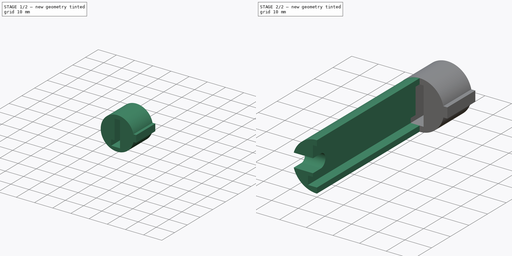
[diagram: build sequence overview — one tinted view per stage of 2, left to right]
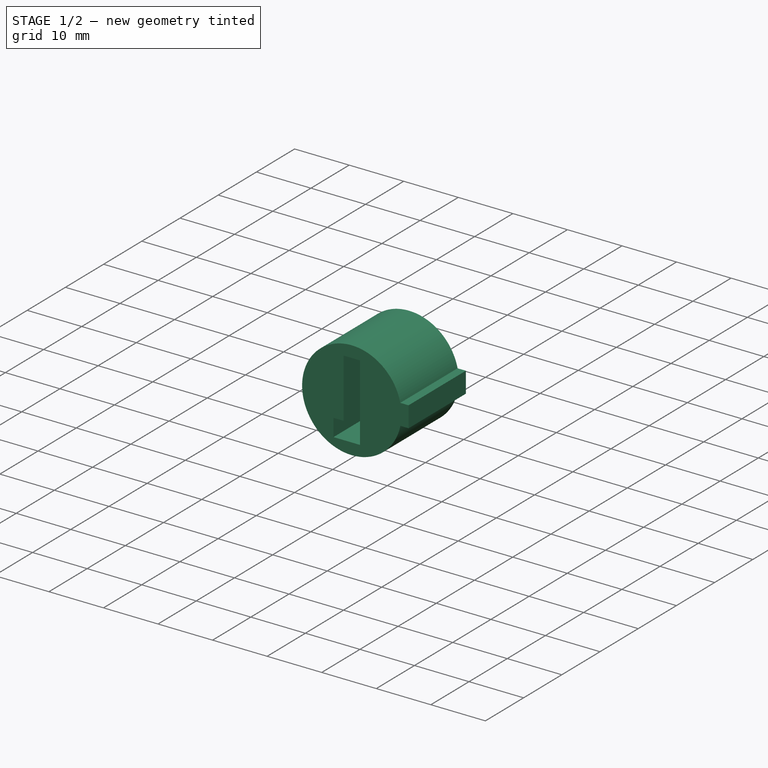
[diagram: stage 1 of 2 — iso view after this stage's code; geometry added in this stage tinted green]
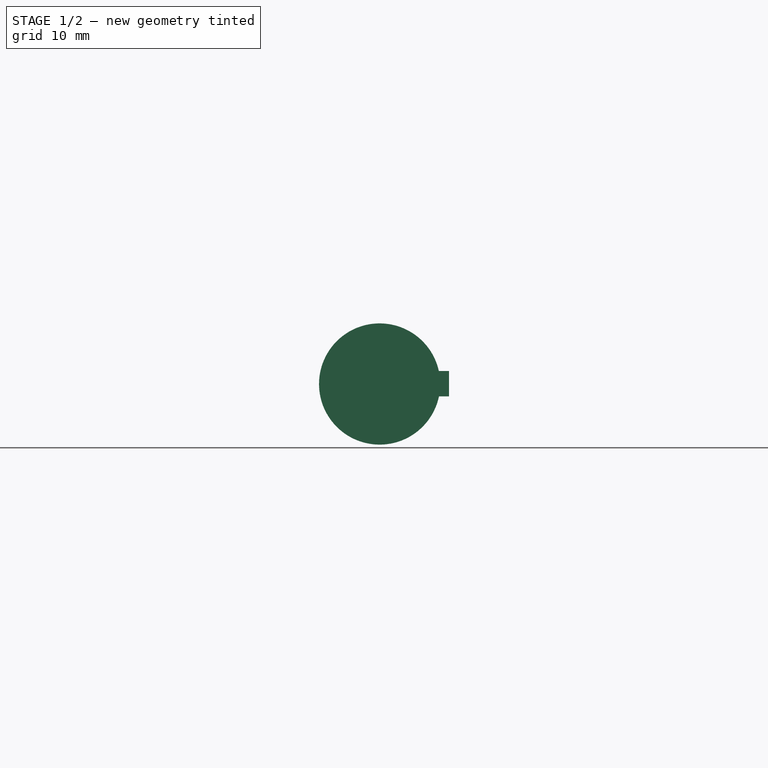
[diagram: stage 1 of 2 — front view after this stage's code; geometry added in this stage tinted green]
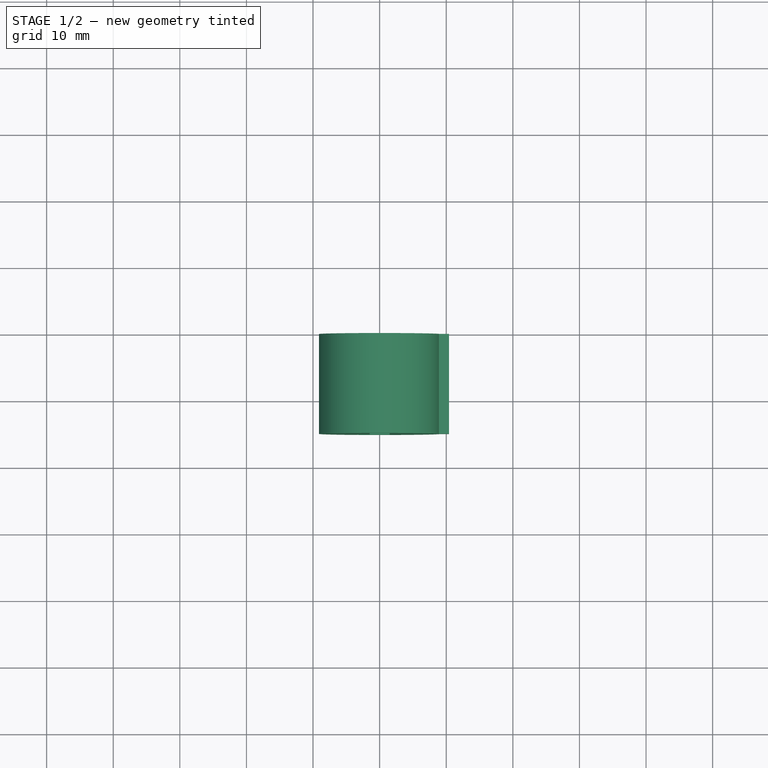
[diagram: stage 1 of 2 — top view after this stage's code; geometry added in this stage tinted green]
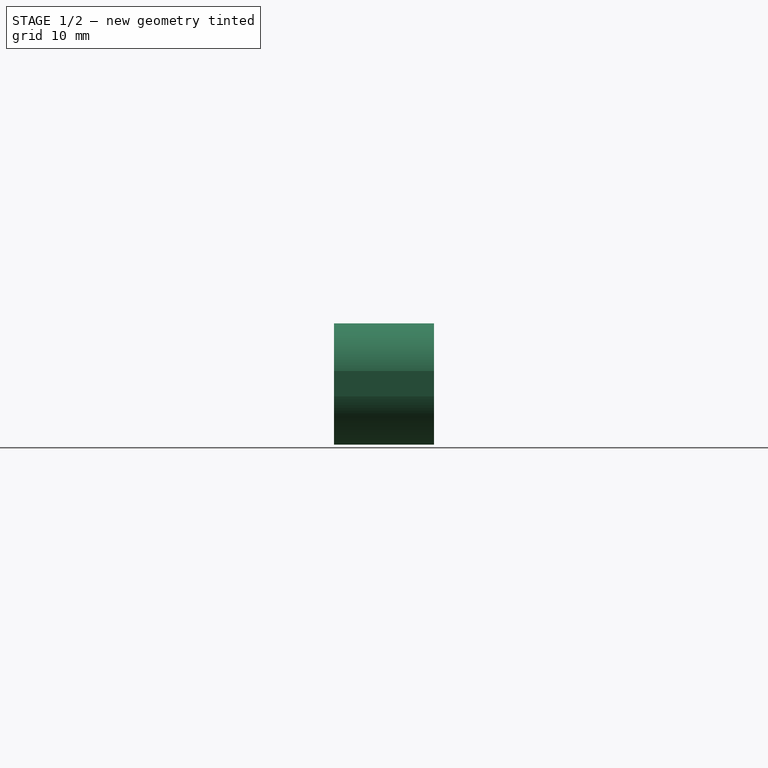
[diagram: stage 1 of 2 — right view after this stage's code; geometry added in this stage tinted green]
FCSTD DOCUMENT  (FreeCAD 0.19R23074 (Git))
Label: reggi_sensore_v5
License: All rights reserved
LicenseURL: http://en.wikipedia.org/wiki/All_rights_reserved
objects: Sketcher::SketchObject×4, PartDesign::Pad×2, PartDesign::Pocket×2, PartDesign::Body×1
note: 13 computed .brp shape members not serialized (recipe doc carries the construction recipe); baked Part::Feature solids carry a one-line shape summary decoded from their .brp

FEATURE [Sketcher::SketchObject] Sketch
  MapMode = 5
  Placement = pos=(0,0,0) rot=(1,0,0;1.5708rad)
  Support = -> [XZ_Plane]
  sketch-geometry (7):
    g0: ArcOfCircle CenterX=0 CenterY=0 CenterZ=0 NormalX=0 NormalY=0 NormalZ=1 AngleXU=0 Radius=9.1 StartAngle=0.215443 EndAngle=6.07795
    g1: LineSegment StartX=8.88962 StartY=1.9454 StartZ=0 EndX=10.409 EndY=1.9454 EndZ=0
    g2: LineSegment StartX=10.409 StartY=1.9454 StartZ=0 EndX=10.409 EndY=-1.8546 EndZ=0
    g3: LineSegment StartX=10.409 StartY=-1.8546 StartZ=0 EndX=8.90901 EndY=-1.8546 EndZ=0
    g4: GeomPoint X=8.90901 Y=-1.8546 Z=0
    g5: GeomPoint X=8.90901 Y=-1.8546 Z=0
    g6: GeomPoint X=8.89919 Y=-1.90114 Z=0
  constraints (13):
    c: Coincident(g0,g-1)
    c: Radius(g0) = 9.1
    c: Coincident(g1,g2)
    c: Coincident(g2,g3)
    c: Horizontal(g1)
    c: Horizontal(g3)
    c: Vertical(g2)
    c: DistanceY(g2,g1) = 3.8
    c: DistanceX(g3,g3) = 1.5
    c: Coincident(g4,g0)
    c: Coincident(g5,g3)
    c: Coincident(g3,g0)
    c: Coincident(g1,g0)
FEATURE [PartDesign::Pad] Pad
  AllowMultiFace = false
  Direction = (1,1,1)
  Length = 15
  Length2 = 100
  Placement = pos=(0,0,0) rot=(1,0,0;1.5708rad)
  Profile = -> Sketch
  Type = 0
FEATURE [Sketcher::SketchObject] Sketch001
  MapMode = 5
  Placement = pos=(0,-15,0) rot=(1,0,0;1.5708rad)
  Support = -> [Pad]
  sketch-geometry (6):
    g0: LineSegment StartX=-1.5 StartY=7 StartZ=0 EndX=1.5 EndY=7 EndZ=0
    g1: LineSegment StartX=1.5 StartY=7 StartZ=0 EndX=1.5 EndY=-7 EndZ=0
    g2: LineSegment StartX=1.5 StartY=-7 StartZ=0 EndX=-3.34835 EndY=-7 EndZ=0
    g3: LineSegment StartX=-1.5 StartY=-3.80882 StartZ=0 EndX=-1.5 EndY=7 EndZ=0
    g4: LineSegment StartX=-3.34835 StartY=-3.80882 StartZ=0 EndX=-1.5 EndY=-3.80882 EndZ=0
    g5: LineSegment StartX=-3.34835 StartY=-7 StartZ=0 EndX=-3.34835 EndY=-3.80882 EndZ=0
  constraints (14):
    c: Coincident(g0,g1)
    c: Coincident(g1,g2)
    c: Coincident(g3,g0)
    c: Vertical(g3)
    c: DistanceY(g1,g1) = 14
    c: DistanceX(g0,g0) = 3
    c: Symmetric(g1,g0,g-1)
    c: Coincident(g5,g4)
    c: Horizontal(g4)
    c: Vertical(g5)
    c: Coincident(g3,g4)
    c: Symmetric(g0,g0,g-2)
    c: Horizontal(g2)
    c: Coincident(g5,g2)
FEATURE [PartDesign::Pocket] Pocket
  AllowMultiFace = false
  BaseFeature = -> Pad
  Length = 13
  Length2 = 100
  Placement = pos=(0,0,0) rot=(1,0,0;1.5708rad)
  Profile = -> Sketch001
  Type = 0
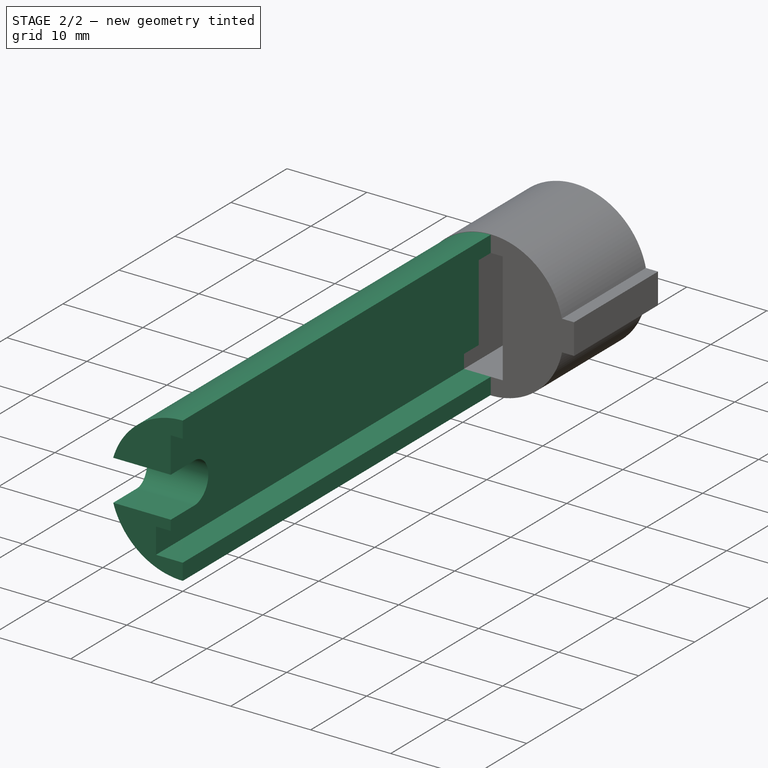
[diagram: stage 2 of 2 — iso view after this stage's code; geometry added in this stage tinted green]
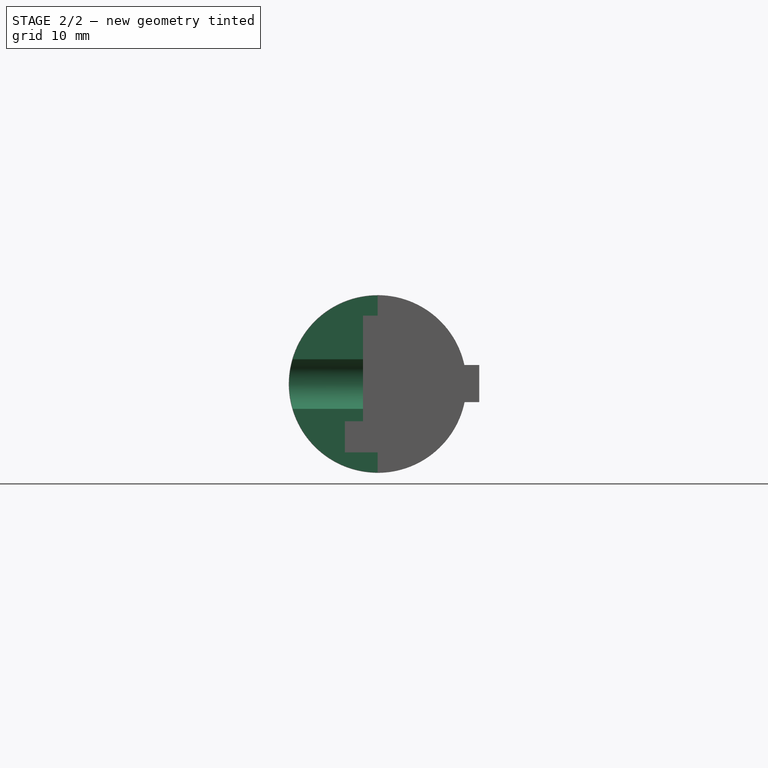
[diagram: stage 2 of 2 — front view after this stage's code; geometry added in this stage tinted green]
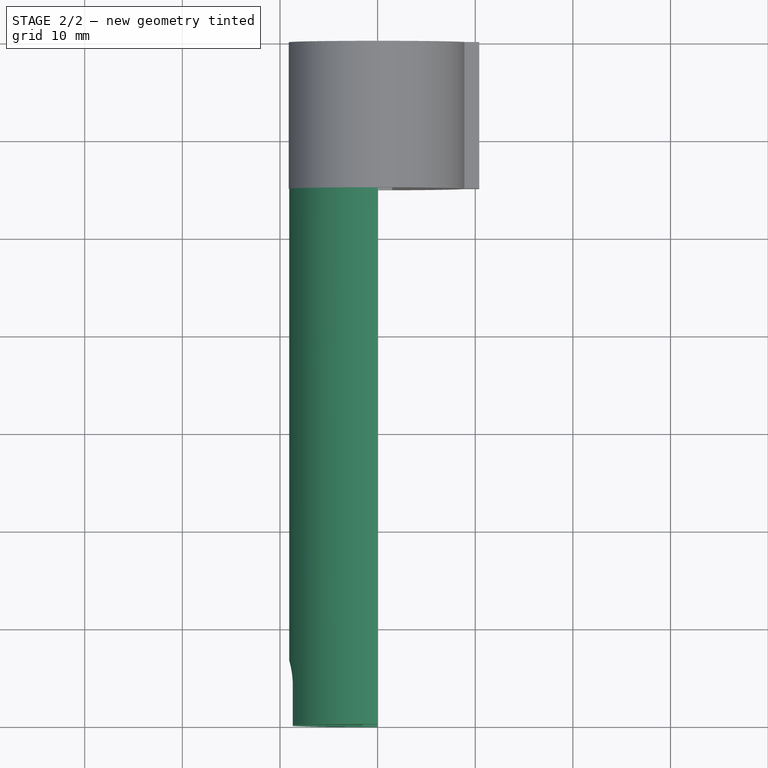
[diagram: stage 2 of 2 — top view after this stage's code; geometry added in this stage tinted green]
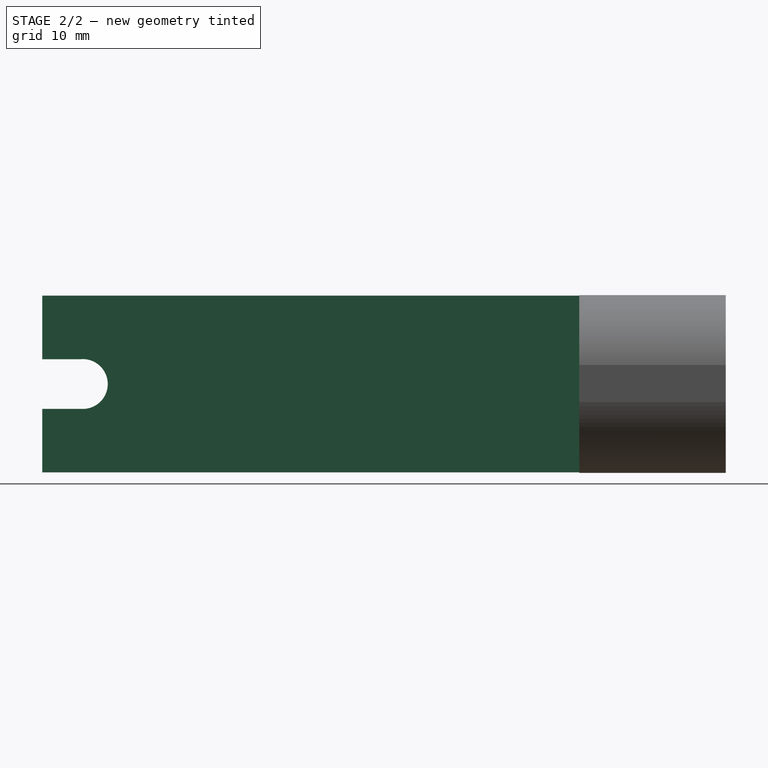
[diagram: stage 2 of 2 — right view after this stage's code; geometry added in this stage tinted green]
FEATURE [Sketcher::SketchObject] Sketch002
  ExternalGeometry = -> [Pocket]
  MapMode = 5
  Placement = pos=(0,-15,0) rot=(1,0,0;1.5708rad)
  Support = -> [Pocket]
  sketch-geometry (8):
    g0: LineSegment StartX=6e-16 StartY=7 StartZ=0 EndX=-1.5 EndY=7 EndZ=0
    g1: LineSegment StartX=-1.5 StartY=7 StartZ=0 EndX=-1.5 EndY=-3.80882 EndZ=0
    g2: LineSegment StartX=-1.5 StartY=-3.80882 StartZ=0 EndX=-3.34835 EndY=-3.80882 EndZ=0
    g3: LineSegment StartX=-3.34835 StartY=-3.80882 StartZ=0 EndX=-3.34835 EndY=-7 EndZ=0
    g4: LineSegment StartX=-3.34835 StartY=-7 StartZ=0 EndX=-1.8e-15 EndY=-7 EndZ=0
    g5: LineSegment StartX=-1.8e-15 StartY=-7 StartZ=0 EndX=-1.8e-15 EndY=-9.05489 EndZ=0
    g6: ArcOfCircle CenterX=0 CenterY=0 CenterZ=0 NormalX=0 NormalY=0 NormalZ=1 AngleXU=0 Radius=9.05489 StartAngle=1.5708 EndAngle=4.71239
    g7: LineSegment StartX=6e-16 StartY=7 StartZ=0 EndX=6e-16 EndY=9.05489 EndZ=0
  constraints (18):
    c: PointOnObject(g0,g-6)
    c: Coincident(g0,g-6)
    c: Coincident(g0,g1)
    c: Coincident(g1,g-4)
    c: Coincident(g1,g2)
    c: Coincident(g2,g-5)
    c: Coincident(g2,g3)
    c: Coincident(g3,g-7)
    c: Coincident(g3,g4)
    c: PointOnObject(g4,g-7)
    c: Coincident(g4,g5)
    c: PointOnObject(g6,g-2)
    c: Vertical(g5)
    c: Coincident(g6,g-1)
    c: Coincident(g7,g0)
    c: Vertical(g7)
    c: PointOnObject(g6,g-2)
    c: Coincident(g6,g5)
FEATURE [PartDesign::Pad] Pad001
  BaseFeature = -> Pocket
  Direction = (1,1,1)
  Length = 55
  Length2 = 100
  Placement = pos=(0,0,0) rot=(1,0,0;1.5708rad)
  Profile = -> Sketch002
  Type = 0
FEATURE [Sketcher::SketchObject] Sketch003
  ExternalGeometry = -> [Pad001]
  MapMode = 5
  Placement = pos=(-1.5,0,0) rot=(0.707107,0,0.707107;3.14159rad)
  Support = -> [Pad001]
  sketch-geometry (4):
    g0: LineSegment StartX=-2.54625 StartY=70 StartZ=0 EndX=-2.54625 EndY=65.9824 EndZ=0
    g1: LineSegment StartX=2.53459 StartY=70 StartZ=0 EndX=2.53459 EndY=66.124 EndZ=0
    g2: ArcOfCircle CenterX=0 CenterY=65.8441 CenterZ=0 NormalX=0 NormalY=0 NormalZ=1 AngleXU=0 Radius=2.55 StartAngle=3.08733 EndAngle=6.39316
    g3: LineSegment StartX=-2.54625 StartY=70 StartZ=0 EndX=2.53459 EndY=70 EndZ=0
  constraints (10):
    c: Vertical(g0)
    c: Vertical(g1)
    c: PointOnObject(g2,g-2)
    c: Coincident(g2,g0)
    c: Coincident(g2,g1)
    c: Radius(g2) = 2.55
    c: PointOnObject(g0,g-3)
    c: PointOnObject(g1,g-3)
    c: Coincident(g3,g0)
    c: Coincident(g3,g1)
FEATURE [PartDesign::Pocket] Pocket001
  BaseFeature = -> Pad001
  Length = 5
  Length2 = 100
  Placement = pos=(0,0,0) rot=(1,0,0;1.5708rad)
  Profile = -> Sketch003
  Type = 1
FEATURE [PartDesign::Body] Body
  Group = -> [Sketch,Pad,Sketch001,Pocket,Sketch002,Pad001,Sketch003,Pocket001]
  Origin = -> Origin
  Tip = -> Pocket001
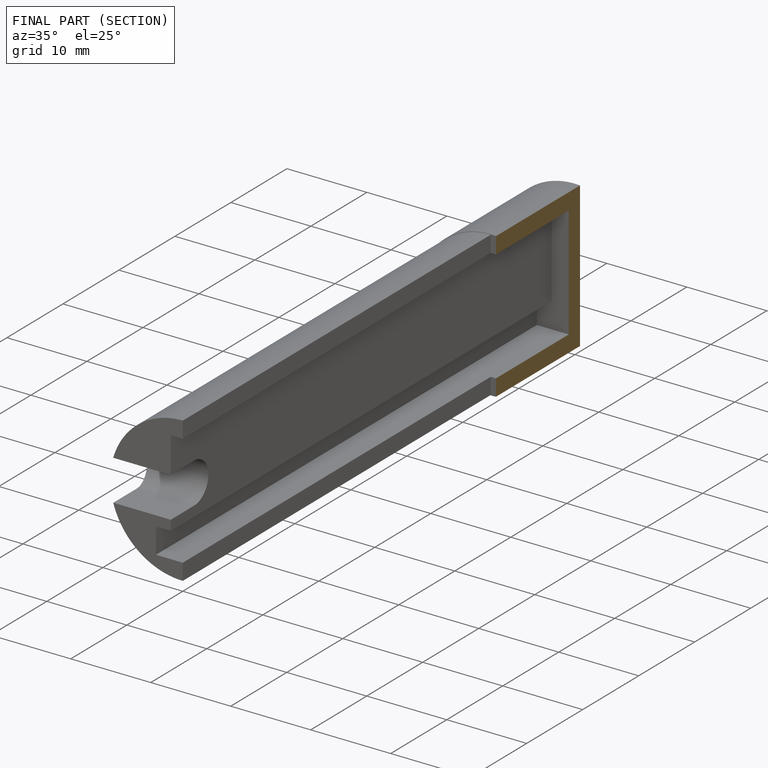
[diagram: finished part — half-section view (interior)]
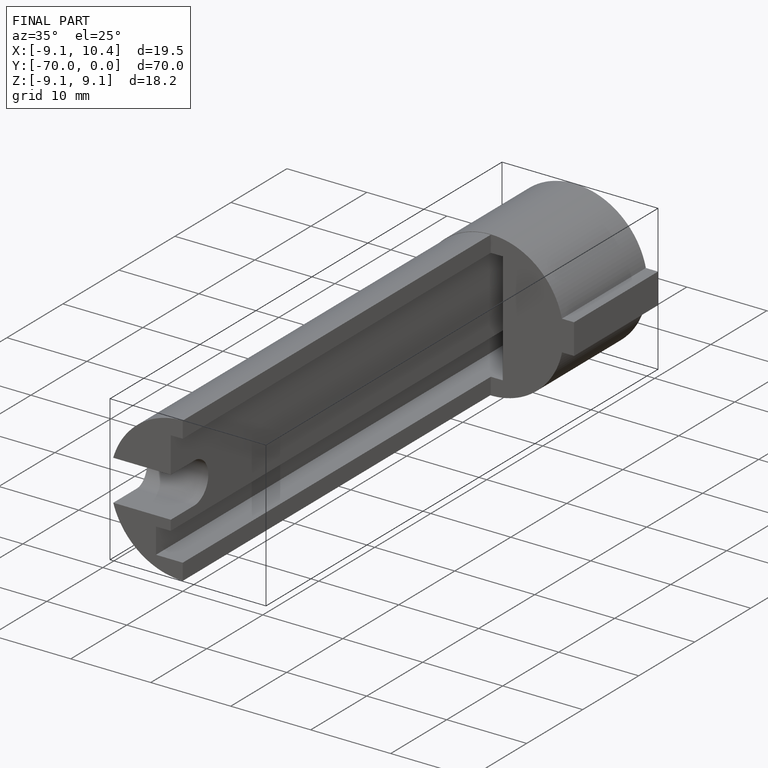
[diagram: finished part — iso view with bounding-box wireframe]
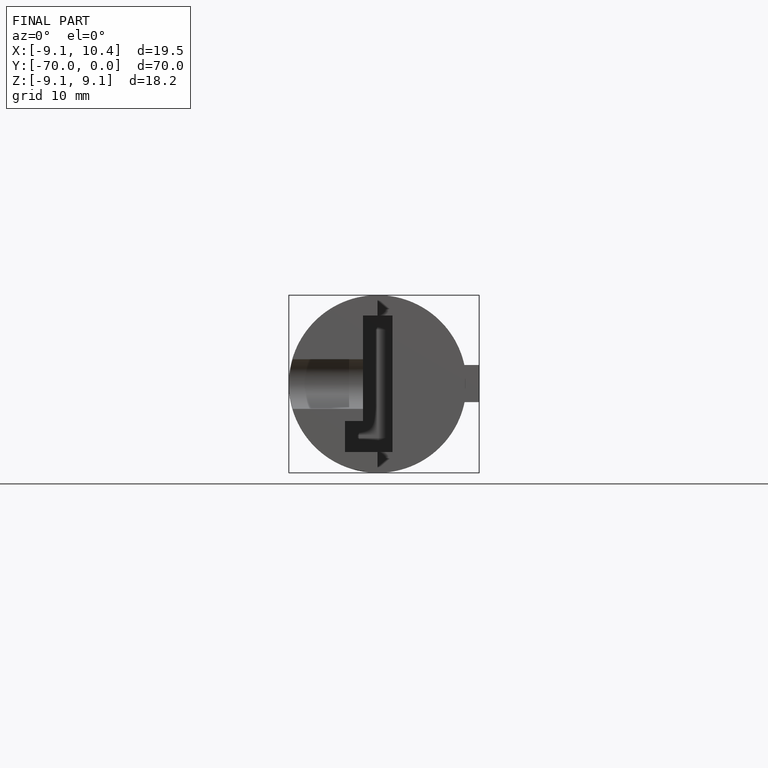
[diagram: finished part — front view with bounding-box wireframe]
